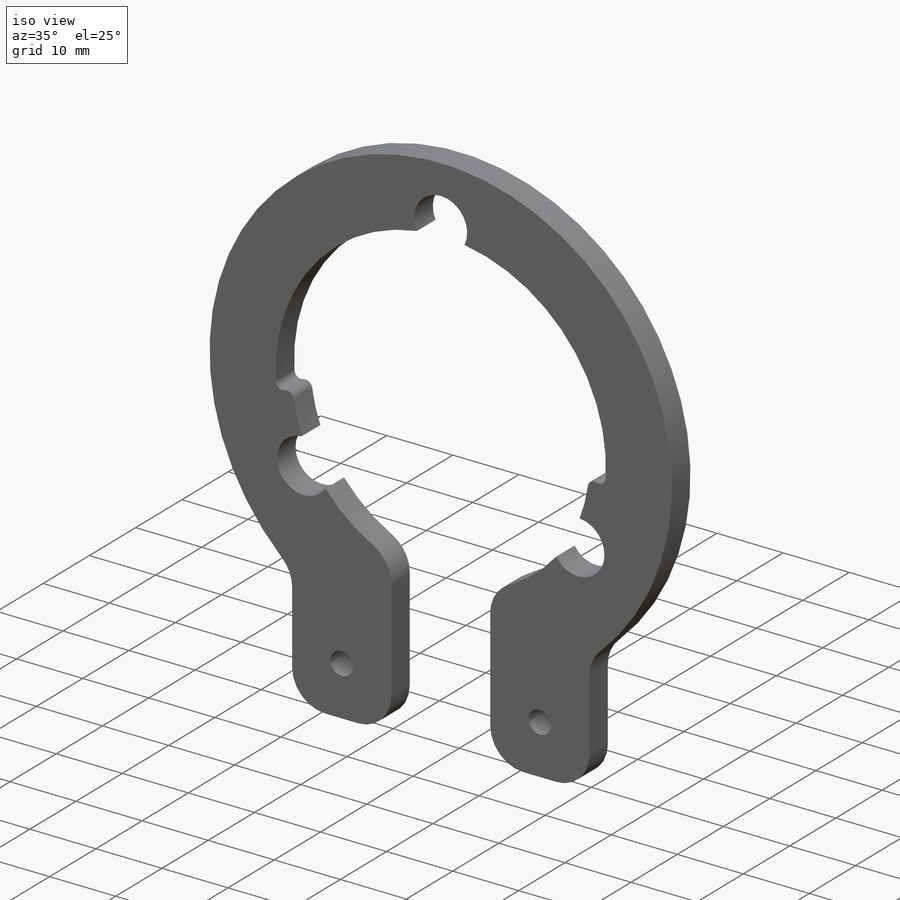
[diagram: iso view]
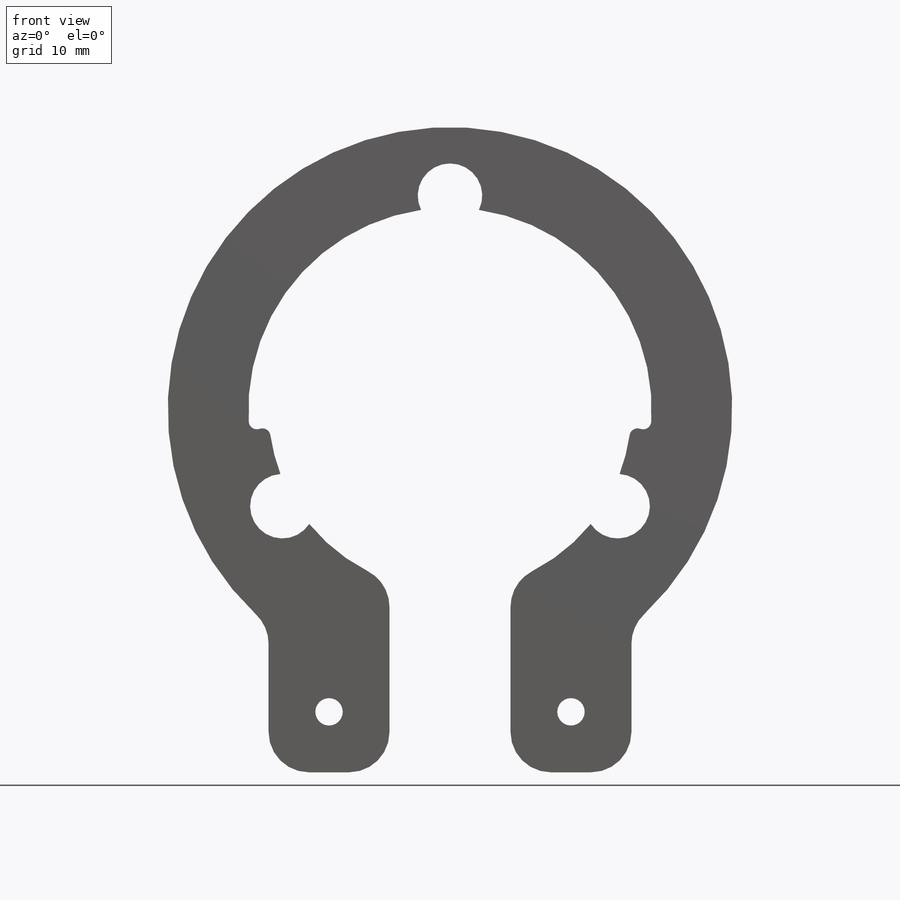
[diagram: front view]
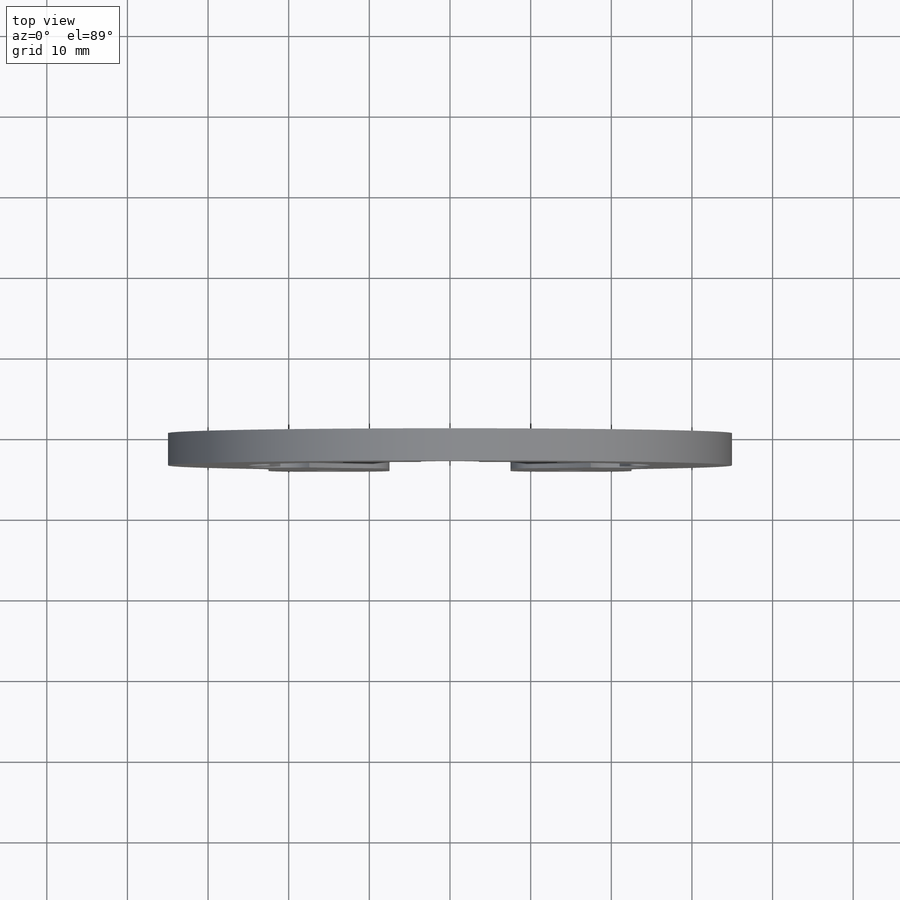
[diagram: top view]
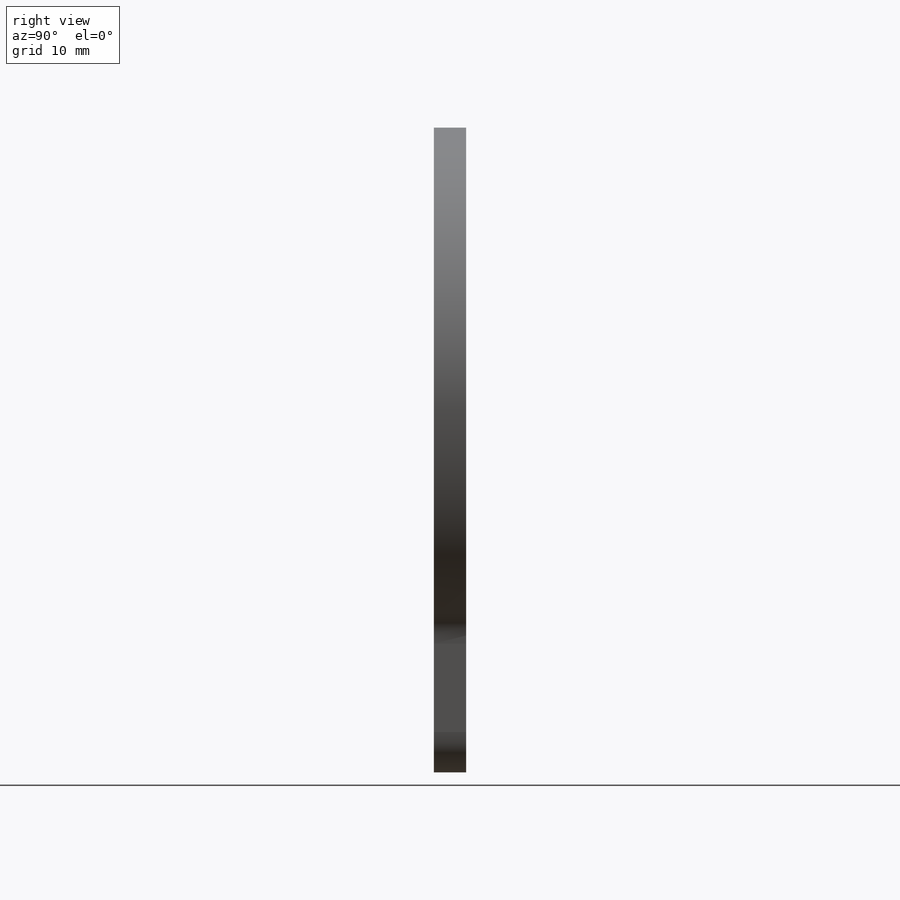
[diagram: right view]
SOLIDWORKS PART (.sldprt)
format: sldprt  version: not decoded by parser v0  size: 269,312 bytes
history: native  units: mm
features: sketch x4, fillet x3, extrude x2, cut_extrude x2, material x1 (+11 scaffold rows collapsed)
feature tree (23):
  scaffold x11  (default folders/planes/origin — collapsed)
  material  "Material <not specified>"
  sketch  "Sketch2"  dims[c1.D1=40.0mm c1.D2=45.0mm c1.D4=8.0mm c1.D3=~13.686664mm c2.D3=60.0deg]
  sketch  "Sketch3"  dims[D1=25.0mm D2=35.0mm D3=10.0mm D4=45.0mm D5=15.0mm D6=45.0mm]
  extrude  "Boss-Extrude1"  Depth=4mm
  cut_extrude  "Cut-Extrude2"  [1 undecoded]
  sketch  "Sketch4"
  extrude  "Boss-Extrude2"  [1 undecoded]
  sketch  "Sketch5"  dims[D1=3.4mm D2=30.0mm D3=37.5mm]
  cut_extrude  "Cut-Extrude3"  [1 undecoded]
  fillet  "Fillet1"  Radius=5mm
  fillet  "Fillet2"  Radius=5mm
  fillet  "Fillet3"  Radius=1mm
decode coverage: 7 of 11 modeling features carry decoded parameters
note: ~ marks probable driven/reference dimensions
note: 3 parameter values undecoded
summary: no parameter record found for 3 features
note: suppression state not decoded; provenance and decode notes live in map.json
